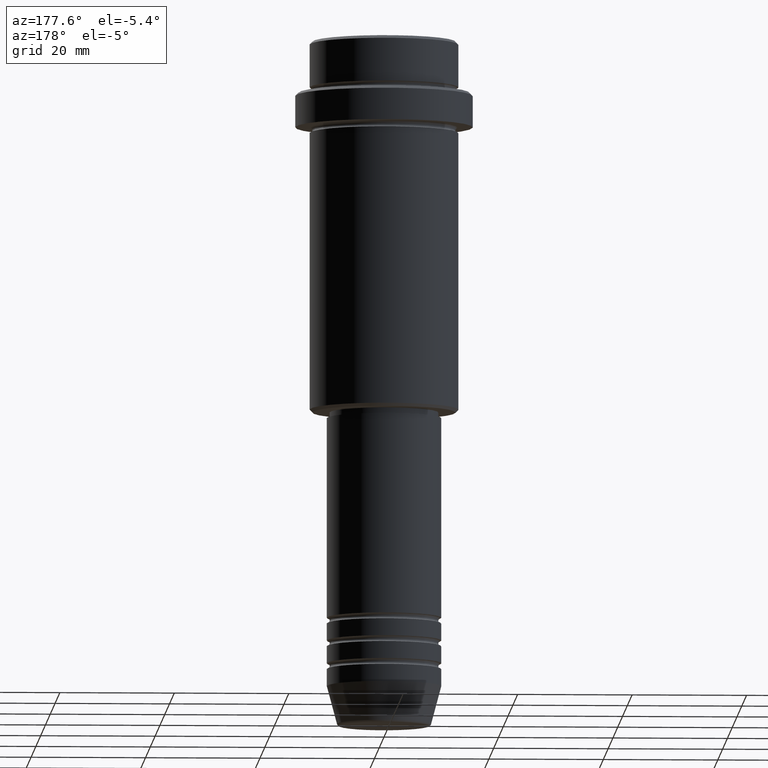
[diagram: clean part render]
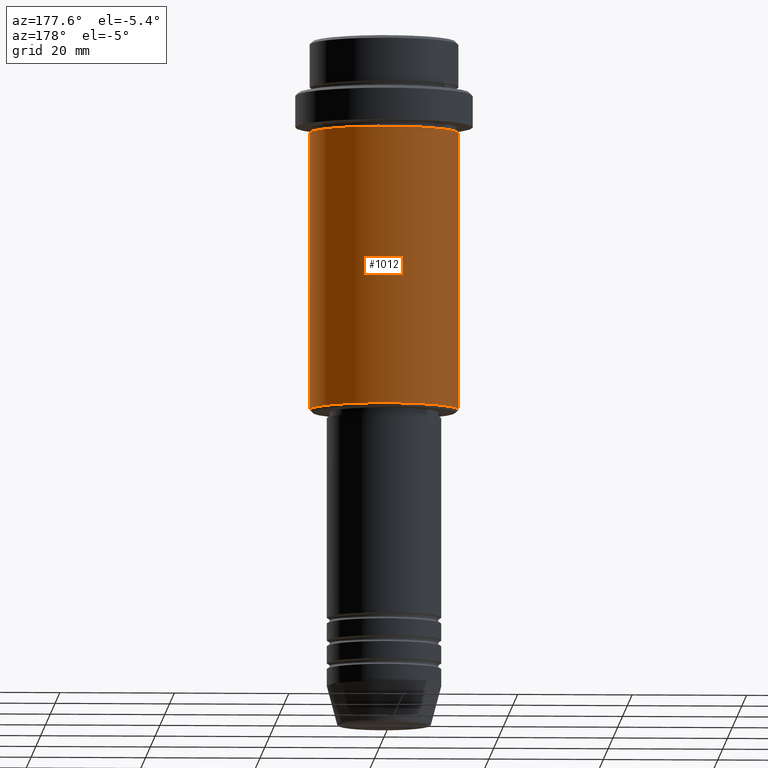
[diagram: same view with one face highlighted and labeled with its STEP entity id]
A machine part, auxiliary view. The second image highlights one B-rep face of the part: STEP entity #1012.
In plain terms, the highlighted cylindrical surface (partial cylindrical patch) has radius 13 mm, axis along (-0, -0, 1).
Its self-contained STEP definition (entity closure, byte-faithful):
#22 = CARTESIAN_POINT ( 'NONE',  ( 0.000000000000000000, 0.000000000000000000, -16.00000000000000000 ) ) ;
#44 = DIRECTION ( 'NONE',  ( -0.000000000000000000, -0.000000000000000000, 1.000000000000000000 ) ) ;
#136 = CARTESIAN_POINT ( 'NONE',  ( -13.00000000000000000, 1.592040838891559095E-15, -64.50000000000001421 ) ) ;
#227 = AXIS2_PLACEMENT_3D ( 'NONE', #702, #382, #919 ) ;
#239 = ORIENTED_EDGE ( 'NONE', *, *, #535, .T. ) ;
#254 = VECTOR ( 'NONE', #1150, 1000.000000000000000 ) ;
#284 = CARTESIAN_POINT ( 'NONE',  ( 0.000000000000000000, 0.000000000000000000, -64.50000000000001421 ) ) ;
#307 = ORIENTED_EDGE ( 'NONE', *, *, #407, .F. ) ;
#374 = DIRECTION ( 'NONE',  ( 1.000000000000000000, 0.000000000000000000, 0.000000000000000000 ) ) ;
#382 = DIRECTION ( 'NONE',  ( -0.000000000000000000, -0.000000000000000000, 1.000000000000000000 ) ) ;
#401 = CARTESIAN_POINT ( 'NONE',  ( -13.00000000000000000, 1.592040838891559095E-15, -16.00000000000000000 ) ) ;
#407 = EDGE_CURVE ( 'NONE', #1023, #499, #1346, .T. ) ;
#413 = DIRECTION ( 'NONE',  ( -0.000000000000000000, -0.000000000000000000, 1.000000000000000000 ) ) ;
#427 = AXIS2_PLACEMENT_3D ( 'NONE', #22, #44, #374 ) ;
#461 = ORIENTED_EDGE ( 'NONE', *, *, #1379, .T. ) ;
#465 = ORIENTED_EDGE ( 'NONE', *, *, #871, .F. ) ;
#499 = VERTEX_POINT ( 'NONE', #401 ) ;
#535 = EDGE_CURVE ( 'NONE', #1286, #848, #859, .T. ) ;
#570 = LINE ( 'NONE', #782, #679 ) ;
#598 = CARTESIAN_POINT ( 'NONE',  ( -13.00000000000000000, 1.592040838891559095E-15, 0.000000000000000000 ) ) ;
#630 = AXIS2_PLACEMENT_3D ( 'NONE', #284, #413, #1043 ) ;
#679 = VECTOR ( 'NONE', #685, 1000.000000000000000 ) ;
#685 = DIRECTION ( 'NONE',  ( -0.000000000000000000, -0.000000000000000000, 1.000000000000000000 ) ) ;
#702 = CARTESIAN_POINT ( 'NONE',  ( 0.000000000000000000, 0.000000000000000000, 0.000000000000000000 ) ) ;
#782 = CARTESIAN_POINT ( 'NONE',  ( 13.00000000000000000, 0.000000000000000000, 0.000000000000000000 ) ) ;
#848 = VERTEX_POINT ( 'NONE', #136 ) ;
#857 = EDGE_LOOP ( 'NONE', ( #239, #461, #307, #465 ) ) ;
#859 = CIRCLE ( 'NONE', #630, 13.00000000000000000 ) ;
#871 = EDGE_CURVE ( 'NONE', #1286, #1023, #570, .T. ) ;
#919 = DIRECTION ( 'NONE',  ( 1.000000000000000000, 0.000000000000000000, 0.000000000000000000 ) ) ;
#942 = FACE_OUTER_BOUND ( 'NONE', #857, .T. ) ;
#1012 = ADVANCED_FACE ( 'NONE', ( #942 ), #1359, .T. ) ;
#1023 = VERTEX_POINT ( 'NONE', #1371 ) ;
#1043 = DIRECTION ( 'NONE',  ( -1.000000000000000000, 0.000000000000000000, 0.000000000000000000 ) ) ;
#1134 = LINE ( 'NONE', #598, #254 ) ;
#1150 = DIRECTION ( 'NONE',  ( -0.000000000000000000, -0.000000000000000000, 1.000000000000000000 ) ) ;
#1211 = CARTESIAN_POINT ( 'NONE',  ( 13.00000000000000000, 0.000000000000000000, -64.50000000000001421 ) ) ;
#1286 = VERTEX_POINT ( 'NONE', #1211 ) ;
#1346 = CIRCLE ( 'NONE', #427, 13.00000000000000000 ) ;
#1359 = CYLINDRICAL_SURFACE ( 'NONE', #227, 13.00000000000000000 ) ;
#1371 = CARTESIAN_POINT ( 'NONE',  ( 13.00000000000000000, 0.000000000000000000, -16.00000000000000000 ) ) ;
#1379 = EDGE_CURVE ( 'NONE', #848, #499, #1134, .T. ) ;